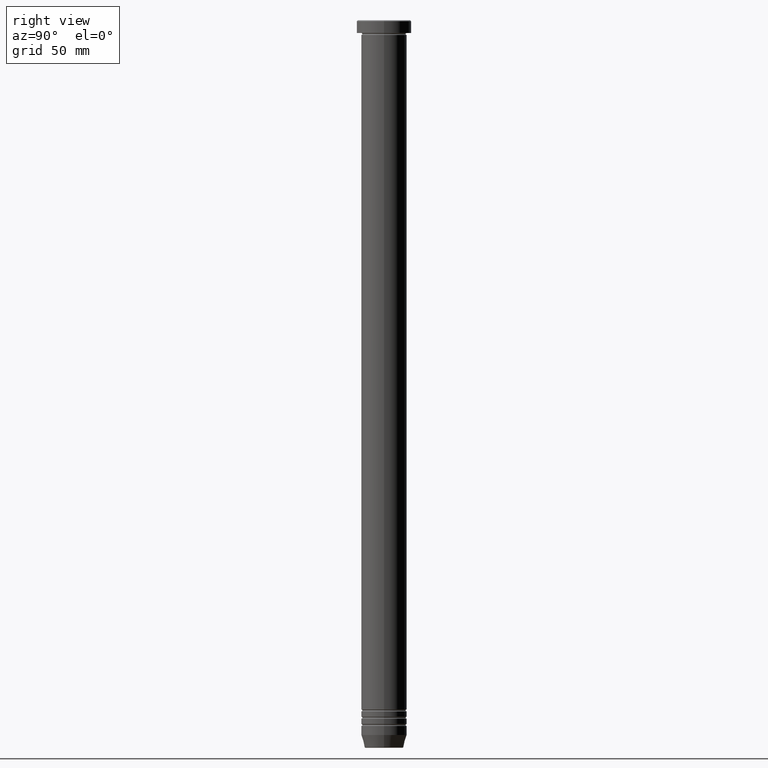
[diagram: clean part render]
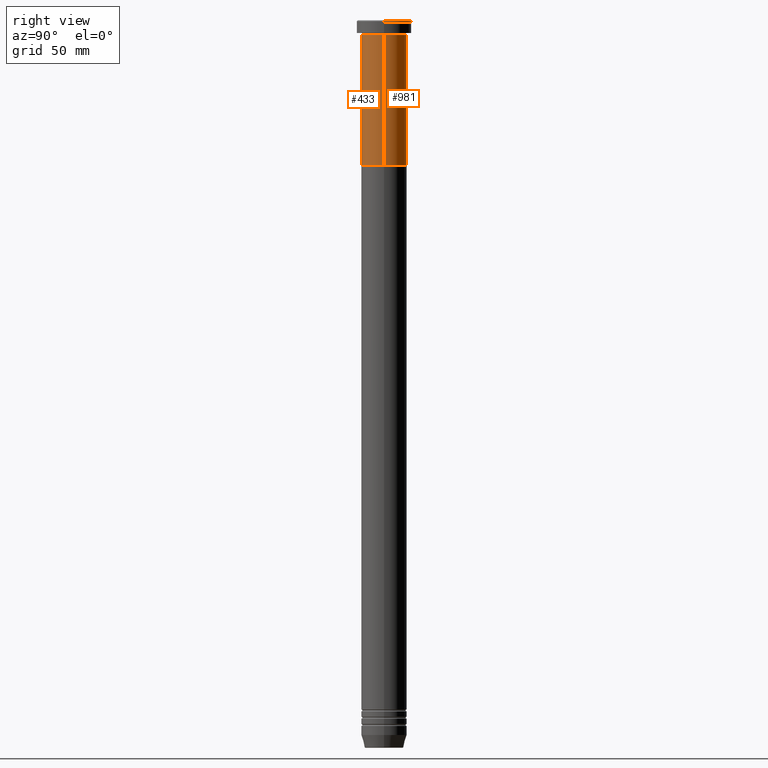
[diagram: same view with one multi-face feature highlighted, each face labeled with its STEP entity id]
A machine part, right view. The highlighted faces form ONE feature: a constant-radius fillet chain: 2 tangent blend faces with common blend radius 12.5 mm. The faces share edges in the B-rep.
Their STEP definitions:
[1] entity #433 (Cylinder):
#5 = CARTESIAN_POINT ( 'NONE',  ( 12.50000000000000000, 0.000000000000000000, 0.000000000000000000 ) ) ;
#28 = CIRCLE ( 'NONE', #636, 12.50000000000000000 ) ;
#40 = CARTESIAN_POINT ( 'NONE',  ( 0.000000000000000000, 0.000000000000000000, 0.000000000000000000 ) ) ;
#56 = EDGE_CURVE ( 'NONE', #872, #246, #634, .T. ) ;
#81 = LINE ( 'NONE', #5, #776 ) ;
#85 = DIRECTION ( 'NONE',  ( -0.000000000000000000, -0.000000000000000000, 1.000000000000000000 ) ) ;
#89 = CARTESIAN_POINT ( 'NONE',  ( -12.50000000000000000, 1.530808498934191521E-15, 0.000000000000000000 ) ) ;
#101 = DIRECTION ( 'NONE',  ( -0.000000000000000000, -0.000000000000000000, 1.000000000000000000 ) ) ;
#127 = DIRECTION ( 'NONE',  ( -0.000000000000000000, -0.000000000000000000, 1.000000000000000000 ) ) ;
#143 = VERTEX_POINT ( 'NONE', #1033 ) ;
#181 = AXIS2_PLACEMENT_3D ( 'NONE', #617, #127, #938 ) ;
#185 = CYLINDRICAL_SURFACE ( 'NONE', #1022, 12.50000000000000000 ) ;
#207 = ORIENTED_EDGE ( 'NONE', *, *, #1060, .F. ) ;
#243 = CIRCLE ( 'NONE', #181, 12.50000000000000000 ) ;
#246 = VERTEX_POINT ( 'NONE', #361 ) ;
#278 = EDGE_CURVE ( 'NONE', #143, #979, #81, .T. ) ;
#361 = CARTESIAN_POINT ( 'NONE',  ( -12.50000000000000000, 1.530808498934191521E-15, -8.000000000000000000 ) ) ;
#433 = ADVANCED_FACE ( 'NONE', ( #771 ), #185, .T. ) ;
#437 = DIRECTION ( 'NONE',  ( -0.000000000000000000, -0.000000000000000000, 1.000000000000000000 ) ) ;
#468 = EDGE_CURVE ( 'NONE', #872, #143, #28, .T. ) ;
#517 = ORIENTED_EDGE ( 'NONE', *, *, #278, .T. ) ;
#535 = ORIENTED_EDGE ( 'NONE', *, *, #56, .F. ) ;
#547 = EDGE_LOOP ( 'NONE', ( #535, #618, #517, #207 ) ) ;
#617 = CARTESIAN_POINT ( 'NONE',  ( 0.000000000000000000, 0.000000000000000000, -8.000000000000000000 ) ) ;
#618 = ORIENTED_EDGE ( 'NONE', *, *, #468, .T. ) ;
#634 = LINE ( 'NONE', #89, #1032 ) ;
#636 = AXIS2_PLACEMENT_3D ( 'NONE', #839, #437, #934 ) ;
#673 = DIRECTION ( 'NONE',  ( 1.000000000000000000, 0.000000000000000000, 0.000000000000000000 ) ) ;
#771 = FACE_OUTER_BOUND ( 'NONE', #547, .T. ) ;
#776 = VECTOR ( 'NONE', #101, 1000.000000000000000 ) ;
#837 = CARTESIAN_POINT ( 'NONE',  ( 12.50000000000000000, 0.000000000000000000, -8.000000000000000000 ) ) ;
#839 = CARTESIAN_POINT ( 'NONE',  ( 0.000000000000000000, 0.000000000000000000, -80.00000000000000000 ) ) ;
#872 = VERTEX_POINT ( 'NONE', #993 ) ;
#934 = DIRECTION ( 'NONE',  ( 1.000000000000000000, 0.000000000000000000, 0.000000000000000000 ) ) ;
#938 = DIRECTION ( 'NONE',  ( 1.000000000000000000, 0.000000000000000000, 0.000000000000000000 ) ) ;
#979 = VERTEX_POINT ( 'NONE', #837 ) ;
#993 = CARTESIAN_POINT ( 'NONE',  ( -12.50000000000000000, 1.530808498934191521E-15, -80.00000000000000000 ) ) ;
#997 = DIRECTION ( 'NONE',  ( -0.000000000000000000, -0.000000000000000000, 1.000000000000000000 ) ) ;
#1022 = AXIS2_PLACEMENT_3D ( 'NONE', #40, #997, #673 ) ;
#1032 = VECTOR ( 'NONE', #85, 1000.000000000000000 ) ;
#1033 = CARTESIAN_POINT ( 'NONE',  ( 12.50000000000000000, 0.000000000000000000, -80.00000000000000000 ) ) ;
#1060 = EDGE_CURVE ( 'NONE', #246, #979, #243, .T. ) ;
[2] entity #981 (Cylinder):
#5 = CARTESIAN_POINT ( 'NONE',  ( 12.50000000000000000, 0.000000000000000000, 0.000000000000000000 ) ) ;
#56 = EDGE_CURVE ( 'NONE', #872, #246, #634, .T. ) ;
#81 = LINE ( 'NONE', #5, #776 ) ;
#85 = DIRECTION ( 'NONE',  ( -0.000000000000000000, -0.000000000000000000, 1.000000000000000000 ) ) ;
#86 = ORIENTED_EDGE ( 'NONE', *, *, #568, .T. ) ;
#89 = CARTESIAN_POINT ( 'NONE',  ( -12.50000000000000000, 1.530808498934191521E-15, 0.000000000000000000 ) ) ;
#101 = DIRECTION ( 'NONE',  ( -0.000000000000000000, -0.000000000000000000, 1.000000000000000000 ) ) ;
#104 = DIRECTION ( 'NONE',  ( -0.000000000000000000, -0.000000000000000000, 1.000000000000000000 ) ) ;
#109 = CARTESIAN_POINT ( 'NONE',  ( 0.000000000000000000, 0.000000000000000000, 0.000000000000000000 ) ) ;
#110 = ORIENTED_EDGE ( 'NONE', *, *, #56, .T. ) ;
#143 = VERTEX_POINT ( 'NONE', #1033 ) ;
#179 = AXIS2_PLACEMENT_3D ( 'NONE', #230, #1048, #623 ) ;
#180 = AXIS2_PLACEMENT_3D ( 'NONE', #595, #104, #933 ) ;
#230 = CARTESIAN_POINT ( 'NONE',  ( 0.000000000000000000, 0.000000000000000000, -80.00000000000000000 ) ) ;
#246 = VERTEX_POINT ( 'NONE', #361 ) ;
#278 = EDGE_CURVE ( 'NONE', #143, #979, #81, .T. ) ;
#290 = CYLINDRICAL_SURFACE ( 'NONE', #988, 12.50000000000000000 ) ;
#339 = CIRCLE ( 'NONE', #180, 12.50000000000000000 ) ;
#361 = CARTESIAN_POINT ( 'NONE',  ( -12.50000000000000000, 1.530808498934191521E-15, -8.000000000000000000 ) ) ;
#441 = DIRECTION ( 'NONE',  ( 1.000000000000000000, 0.000000000000000000, 0.000000000000000000 ) ) ;
#458 = CIRCLE ( 'NONE', #179, 12.50000000000000000 ) ;
#568 = EDGE_CURVE ( 'NONE', #143, #872, #458, .T. ) ;
#595 = CARTESIAN_POINT ( 'NONE',  ( 0.000000000000000000, 0.000000000000000000, -8.000000000000000000 ) ) ;
#623 = DIRECTION ( 'NONE',  ( 1.000000000000000000, 0.000000000000000000, 0.000000000000000000 ) ) ;
#634 = LINE ( 'NONE', #89, #1032 ) ;
#679 = FACE_OUTER_BOUND ( 'NONE', #780, .T. ) ;
#773 = ORIENTED_EDGE ( 'NONE', *, *, #921, .F. ) ;
#776 = VECTOR ( 'NONE', #101, 1000.000000000000000 ) ;
#780 = EDGE_LOOP ( 'NONE', ( #86, #110, #773, #805 ) ) ;
#805 = ORIENTED_EDGE ( 'NONE', *, *, #278, .F. ) ;
#837 = CARTESIAN_POINT ( 'NONE',  ( 12.50000000000000000, 0.000000000000000000, -8.000000000000000000 ) ) ;
#872 = VERTEX_POINT ( 'NONE', #993 ) ;
#921 = EDGE_CURVE ( 'NONE', #979, #246, #339, .T. ) ;
#933 = DIRECTION ( 'NONE',  ( 1.000000000000000000, 0.000000000000000000, 0.000000000000000000 ) ) ;
#979 = VERTEX_POINT ( 'NONE', #837 ) ;
#981 = ADVANCED_FACE ( 'NONE', ( #679 ), #290, .T. ) ;
#988 = AXIS2_PLACEMENT_3D ( 'NONE', #109, #996, #441 ) ;
#993 = CARTESIAN_POINT ( 'NONE',  ( -12.50000000000000000, 1.530808498934191521E-15, -80.00000000000000000 ) ) ;
#996 = DIRECTION ( 'NONE',  ( -0.000000000000000000, -0.000000000000000000, 1.000000000000000000 ) ) ;
#1032 = VECTOR ( 'NONE', #85, 1000.000000000000000 ) ;
#1033 = CARTESIAN_POINT ( 'NONE',  ( 12.50000000000000000, 0.000000000000000000, -80.00000000000000000 ) ) ;
#1048 = DIRECTION ( 'NONE',  ( -0.000000000000000000, -0.000000000000000000, 1.000000000000000000 ) ) ;